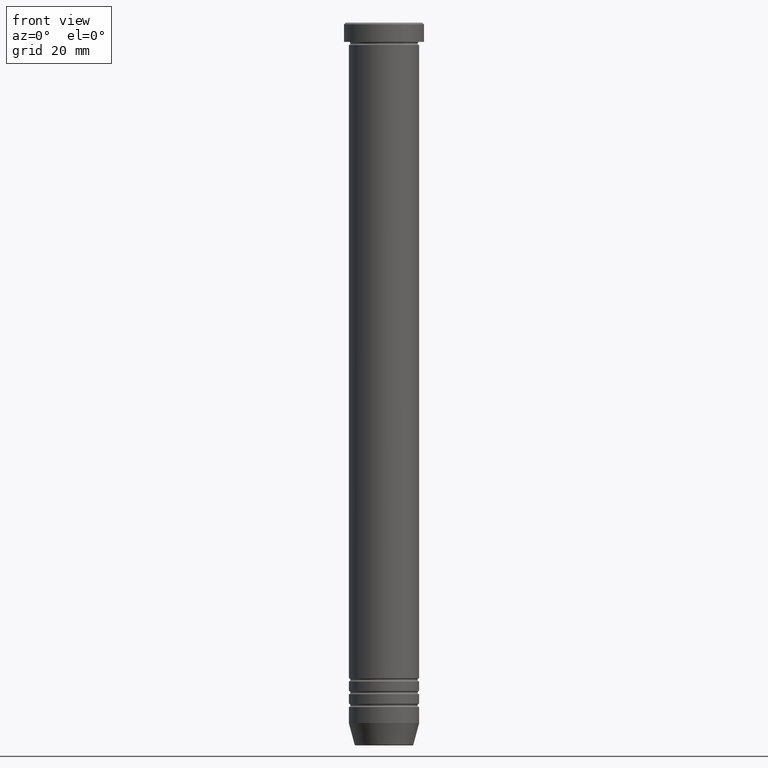
[diagram: clean part render]
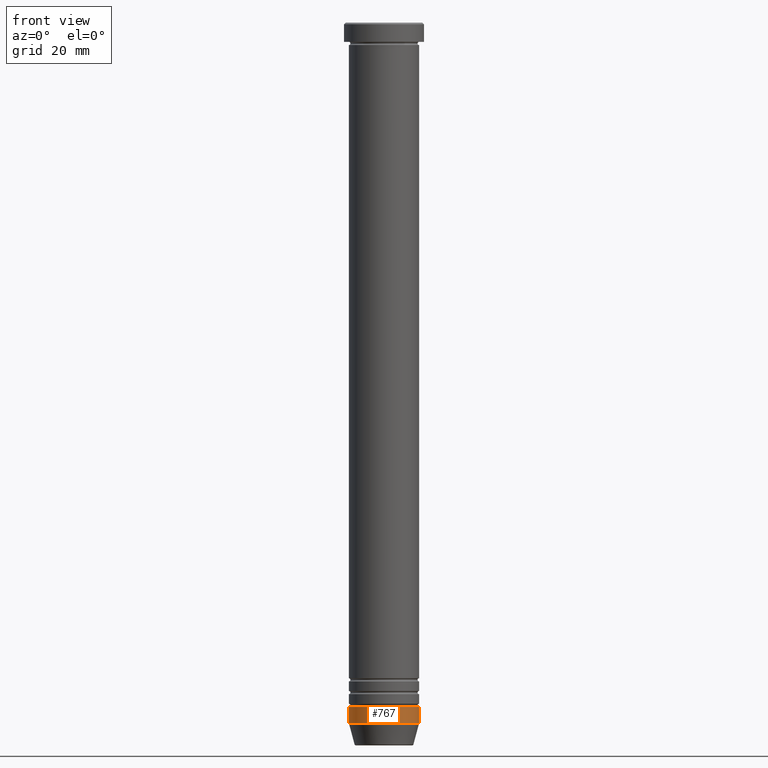
[diagram: same view with one face highlighted and labeled with its STEP entity id]
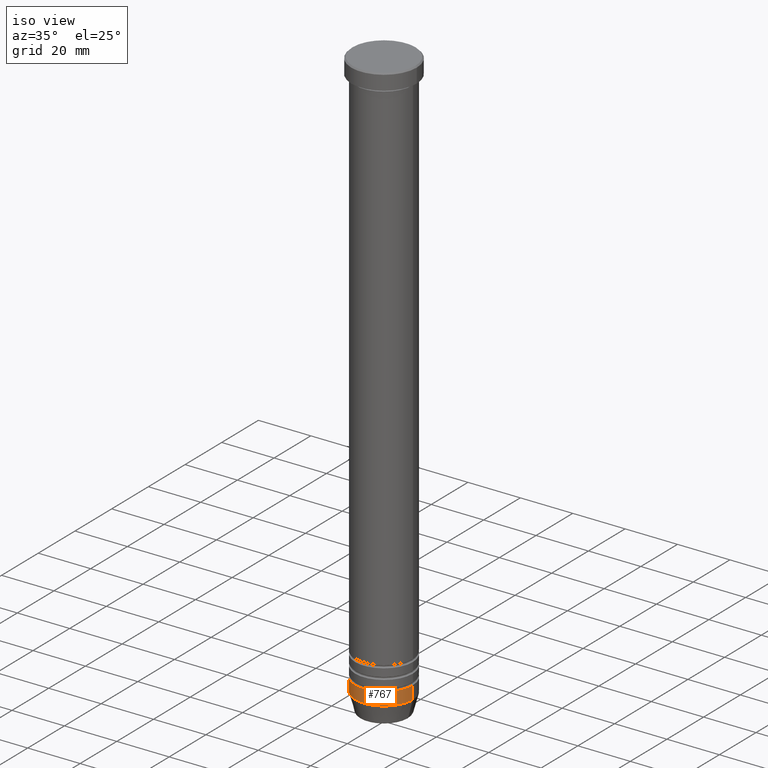
[diagram: same view with one face highlighted and labeled with its STEP entity id]
A machine part, front view. The second image highlights one B-rep face of the part: STEP entity #767.
A second angle (iso view) of the same face is appended — the face is thin or edge-on in the first view.
In plain terms, the highlighted cylindrical surface (edge-blend (fillet) strip) has radius 11 mm, axis along (-0, -0, 1).
Its self-contained STEP definition (entity closure, byte-faithful):
#40 = LINE ( 'NONE', #60, #68 ) ;
#57 = CARTESIAN_POINT ( 'NONE',  ( 11.00000000000000178, 0.000000000000000000, -213.9999999999999716 ) ) ;
#60 = CARTESIAN_POINT ( 'NONE',  ( 11.00000000000000178, 0.000000000000000000, 0.000000000000000000 ) ) ;
#68 = VECTOR ( 'NONE', #408, 1000.000000000000000 ) ;
#69 = DIRECTION ( 'NONE',  ( 1.000000000000000000, 0.000000000000000000, 0.000000000000000000 ) ) ;
#75 = CYLINDRICAL_SURFACE ( 'NONE', #624, 11.00000000000000178 ) ;
#111 = EDGE_CURVE ( 'NONE', #613, #368, #695, .T. ) ;
#115 = ORIENTED_EDGE ( 'NONE', *, *, #615, .F. ) ;
#123 = CIRCLE ( 'NONE', #855, 11.00000000000000178 ) ;
#208 = DIRECTION ( 'NONE',  ( -0.000000000000000000, -0.000000000000000000, 1.000000000000000000 ) ) ;
#234 = VERTEX_POINT ( 'NONE', #976 ) ;
#272 = DIRECTION ( 'NONE',  ( -0.000000000000000000, -0.000000000000000000, 1.000000000000000000 ) ) ;
#286 = ORIENTED_EDGE ( 'NONE', *, *, #456, .T. ) ;
#307 = CARTESIAN_POINT ( 'NONE',  ( -11.00000000000000178, 1.347111479062088602E-15, -218.9999999999999716 ) ) ;
#333 = ORIENTED_EDGE ( 'NONE', *, *, #111, .F. ) ;
#363 = AXIS2_PLACEMENT_3D ( 'NONE', #667, #272, #69 ) ;
#368 = VERTEX_POINT ( 'NONE', #487 ) ;
#374 = CARTESIAN_POINT ( 'NONE',  ( 0.000000000000000000, 0.000000000000000000, 0.000000000000000000 ) ) ;
#408 = DIRECTION ( 'NONE',  ( -0.000000000000000000, -0.000000000000000000, 1.000000000000000000 ) ) ;
#456 = EDGE_CURVE ( 'NONE', #613, #234, #123, .T. ) ;
#487 = CARTESIAN_POINT ( 'NONE',  ( -11.00000000000000178, 1.347111479062088602E-15, -213.9999999999999716 ) ) ;
#497 = DIRECTION ( 'NONE',  ( -0.000000000000000000, -0.000000000000000000, 1.000000000000000000 ) ) ;
#505 = EDGE_LOOP ( 'NONE', ( #333, #286, #1066, #115 ) ) ;
#581 = DIRECTION ( 'NONE',  ( 1.000000000000000000, 0.000000000000000000, 0.000000000000000000 ) ) ;
#598 = VERTEX_POINT ( 'NONE', #57 ) ;
#613 = VERTEX_POINT ( 'NONE', #307 ) ;
#615 = EDGE_CURVE ( 'NONE', #368, #598, #742, .T. ) ;
#624 = AXIS2_PLACEMENT_3D ( 'NONE', #374, #208, #925 ) ;
#667 = CARTESIAN_POINT ( 'NONE',  ( 0.000000000000000000, 0.000000000000000000, -213.9999999999999716 ) ) ;
#695 = LINE ( 'NONE', #1046, #739 ) ;
#739 = VECTOR ( 'NONE', #497, 1000.000000000000000 ) ;
#742 = CIRCLE ( 'NONE', #363, 11.00000000000000178 ) ;
#767 = ADVANCED_FACE ( 'NONE', ( #1064 ), #75, .T. ) ;
#855 = AXIS2_PLACEMENT_3D ( 'NONE', #1111, #936, #581 ) ;
#925 = DIRECTION ( 'NONE',  ( 1.000000000000000000, 0.000000000000000000, 0.000000000000000000 ) ) ;
#936 = DIRECTION ( 'NONE',  ( -0.000000000000000000, -0.000000000000000000, 1.000000000000000000 ) ) ;
#976 = CARTESIAN_POINT ( 'NONE',  ( 11.00000000000000178, 0.000000000000000000, -218.9999999999999716 ) ) ;
#997 = EDGE_CURVE ( 'NONE', #234, #598, #40, .T. ) ;
#1046 = CARTESIAN_POINT ( 'NONE',  ( -11.00000000000000178, 1.347111479062088602E-15, 0.000000000000000000 ) ) ;
#1064 = FACE_OUTER_BOUND ( 'NONE', #505, .T. ) ;
#1066 = ORIENTED_EDGE ( 'NONE', *, *, #997, .T. ) ;
#1111 = CARTESIAN_POINT ( 'NONE',  ( 0.000000000000000000, 0.000000000000000000, -218.9999999999999716 ) ) ;